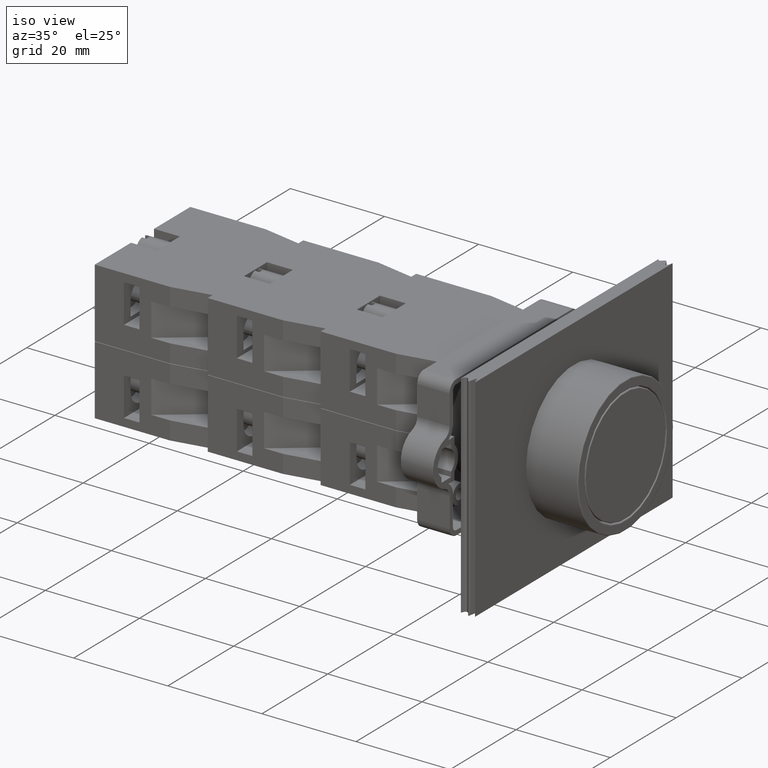
[diagram: clean part render]
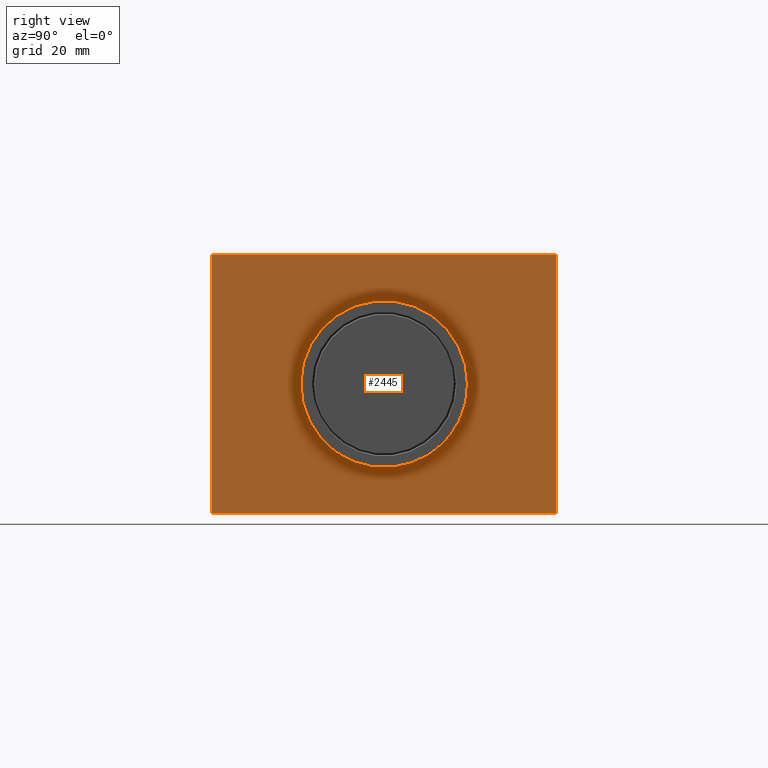
[diagram: tour spotlight — one face highlighted and labeled with its STEP entity id]
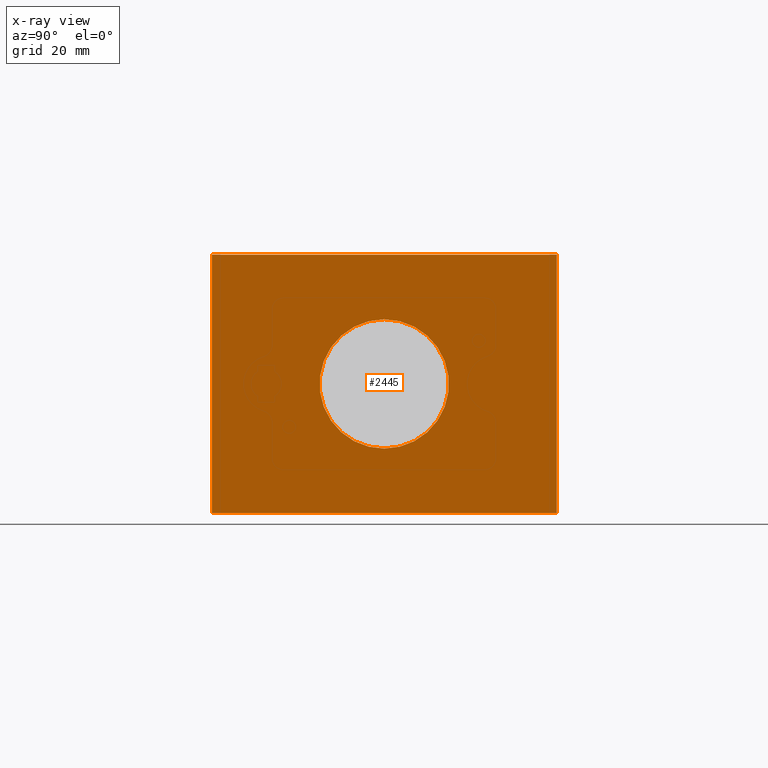
[diagram: x-ray of the same camera — body ghosted, this tour face saturated]
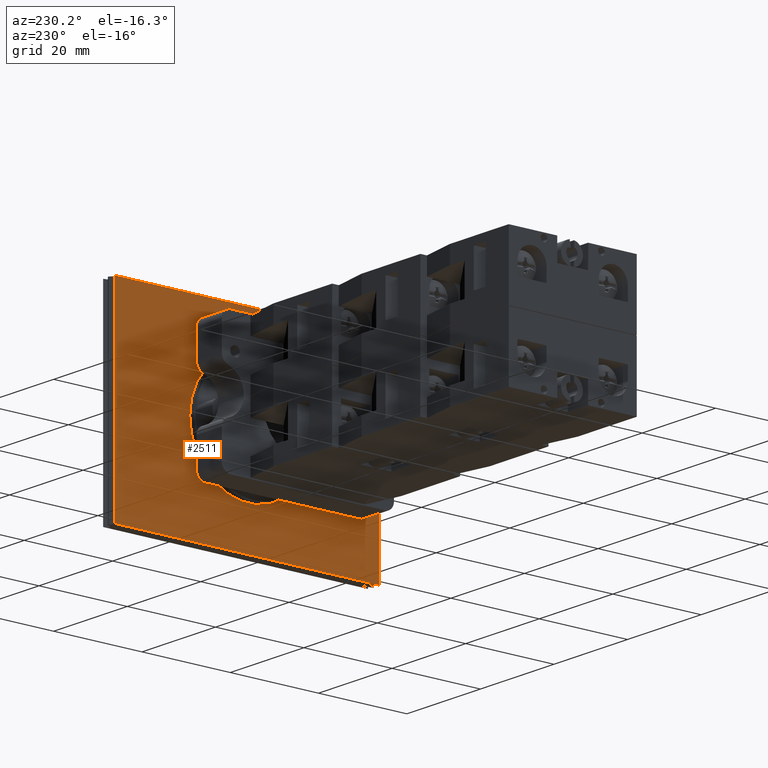
[diagram: tour spotlight — one face highlighted and labeled with its STEP entity id]
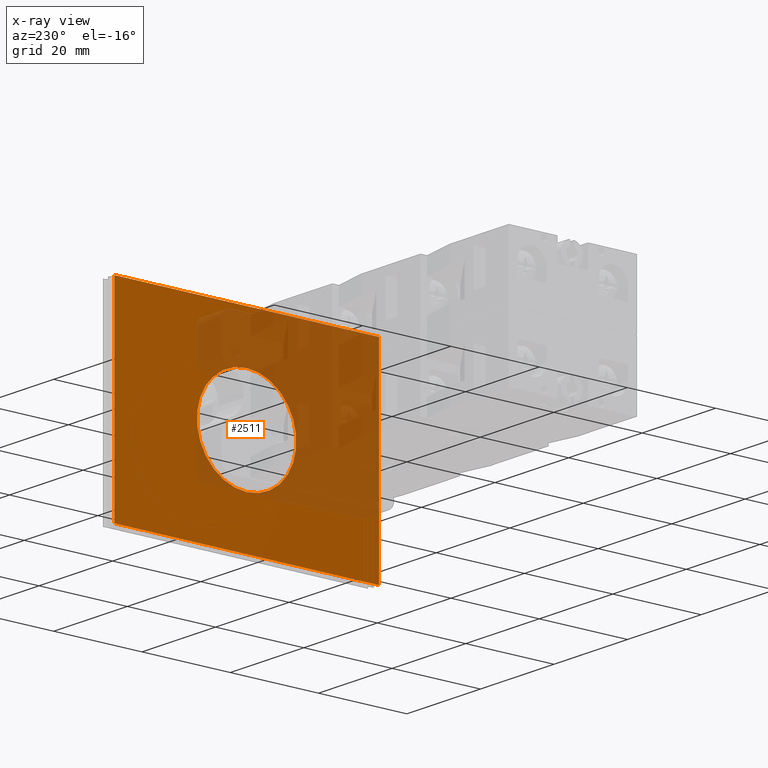
[diagram: x-ray of the same camera — body ghosted, this tour face saturated]
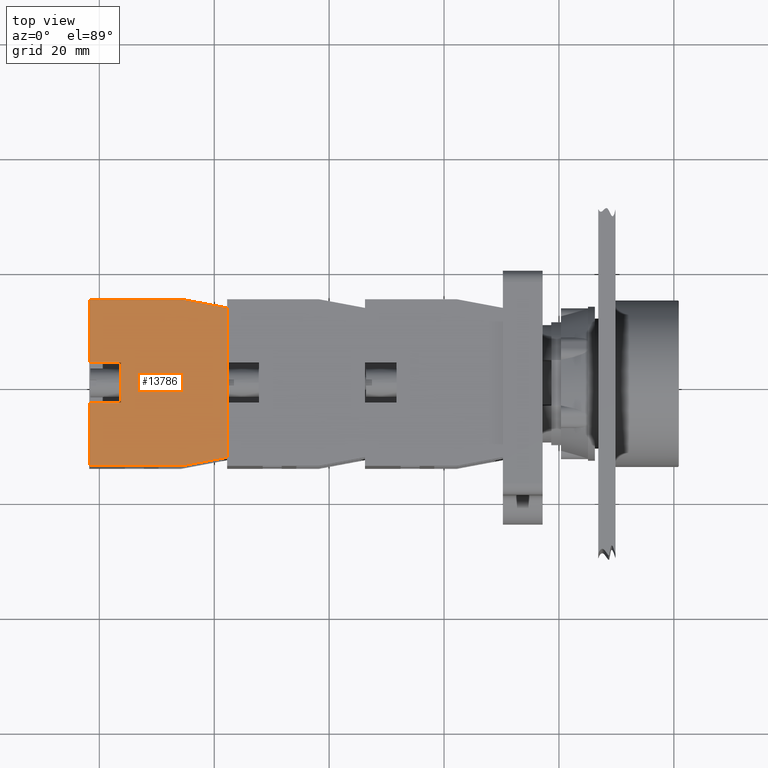
[diagram: tour spotlight — one face highlighted and labeled with its STEP entity id]
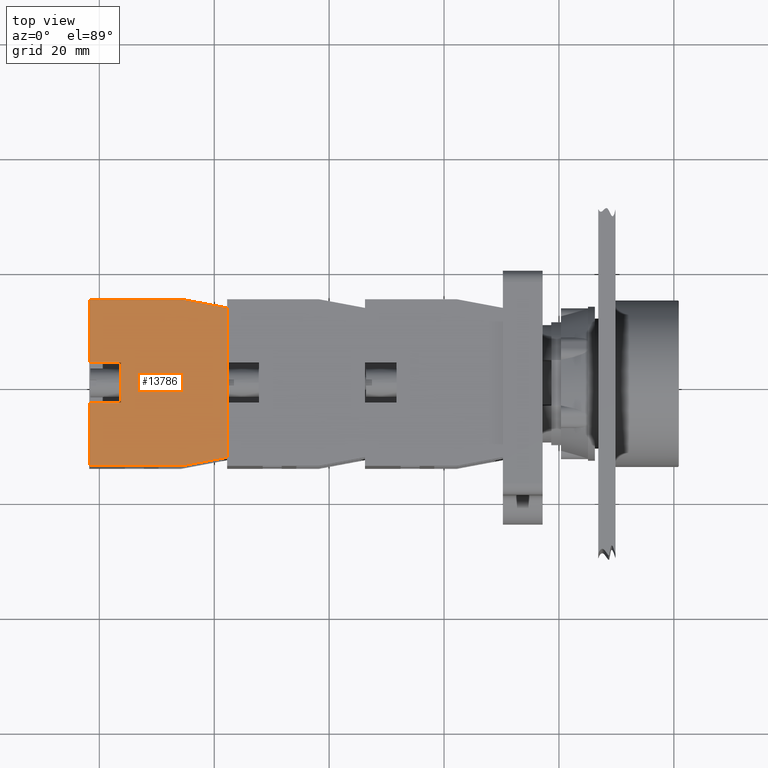
[diagram: tour spotlight — one face highlighted and labeled with its STEP entity id]
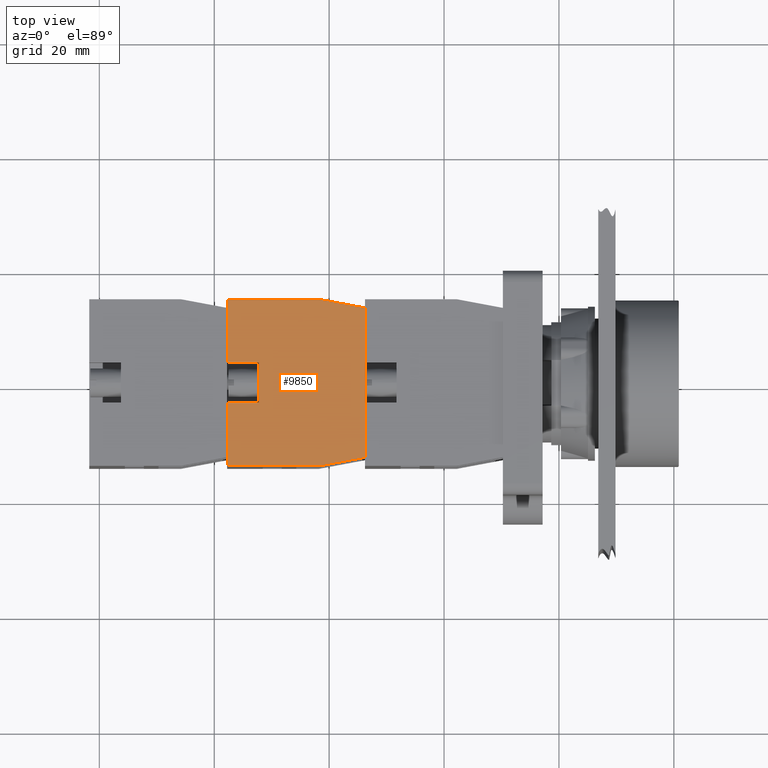
[diagram: tour spotlight — one face highlighted and labeled with its STEP entity id]
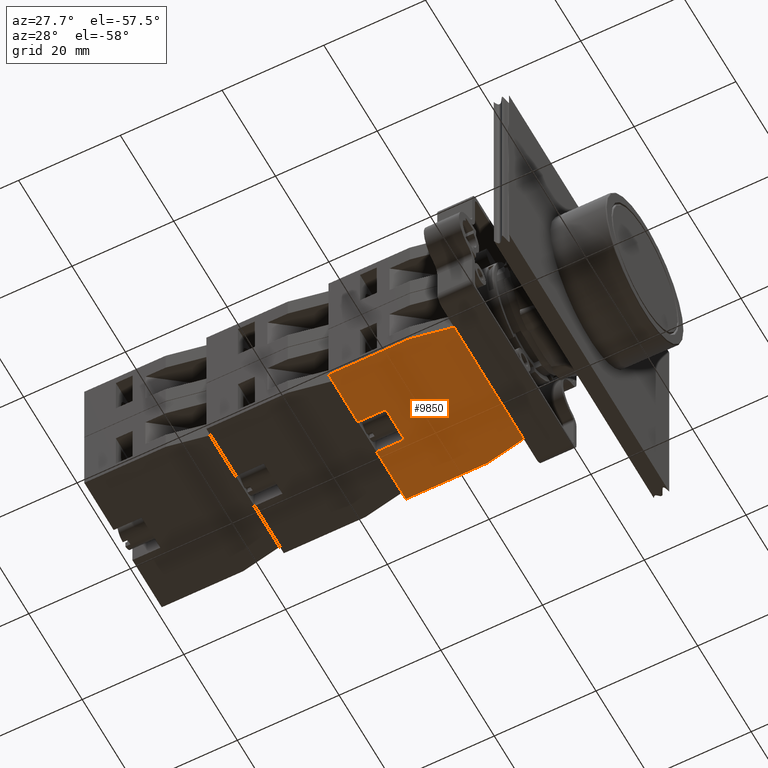
[diagram: tour spotlight — one face highlighted and labeled with its STEP entity id]
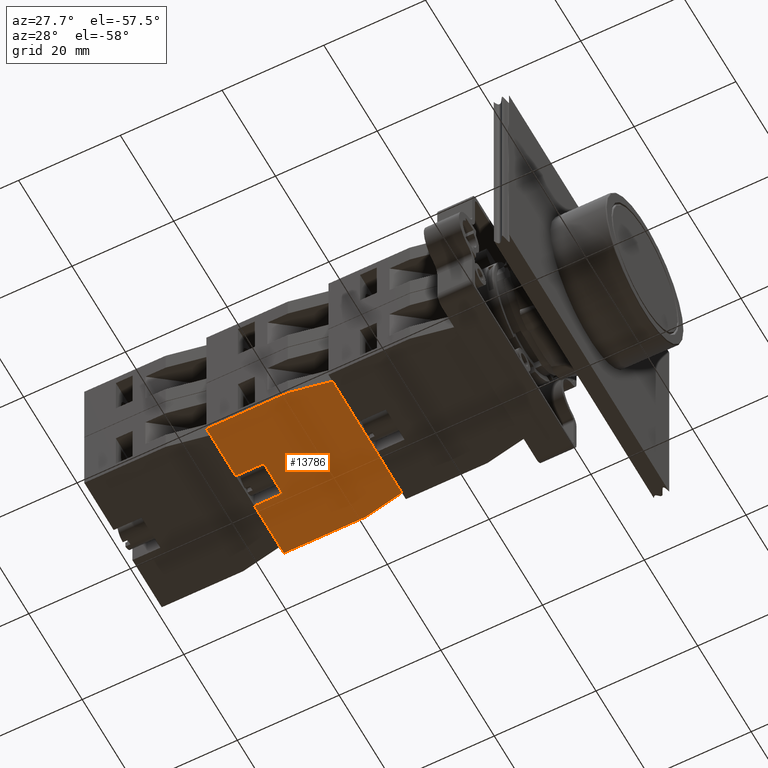
[diagram: tour spotlight — one face highlighted and labeled with its STEP entity id]
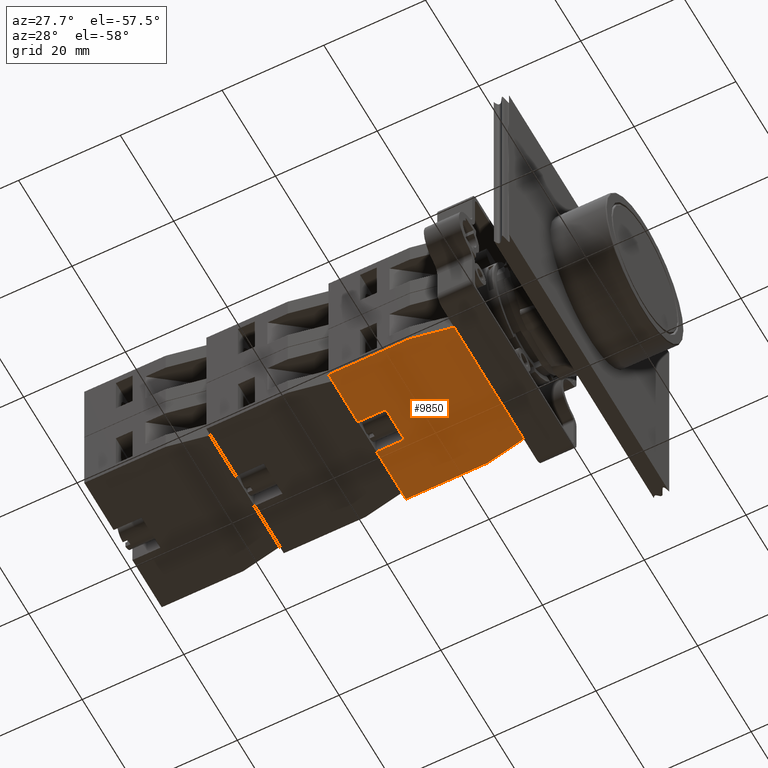
[diagram: tour spotlight — one face highlighted and labeled with its STEP entity id]
A machine part: a face-by-face anatomy tour. The part has 1168 B-rep faces; the first image is the clean iso view, then the 8 largest visible faces are spotlighted one at a time (largest first), each with its STEP entity span.

Face 1 — right view, entity #2445. An x-ray twin of the same camera follows (body ghosted, this face saturated) — the face is partly hidden behind the body. In plain terms, the highlighted planar face has unit normal (1, 0, 0).
Definition (entity closure, byte-faithful):
#2350=CARTESIAN_POINT('',(-12.704183619849175,-32.725398273954283,11.250000000000000));
#2351=VERTEX_POINT('',#2350);
#2352=CARTESIAN_POINT('',(-12.704183619849179,-32.725398273954283,22.500000000000000));
#2353=DIRECTION('',(-1.0,0.0,0.0));
#2354=DIRECTION('',(0.0,0.0,1.0));
#2355=AXIS2_PLACEMENT_3D('',#2352,#2353,#2354);
#2356=CIRCLE('',#2355,11.250000000000000);
#2357=EDGE_CURVE('',#2351,#2351,#2356,.T.);
#2375=CARTESIAN_POINT('',(-12.704183619849179,-2.725398273954287,45.0));
#2376=VERTEX_POINT('',#2375);
#2385=CARTESIAN_POINT('',(-12.704183619849179,-2.725398273954287,0.0));
#2386=VERTEX_POINT('',#2385);
#2387=CARTESIAN_POINT('',(-12.704183619849179,-2.725398273954287,0.0));
#2388=DIRECTION('',(0.0,0.0,1.0));
#2389=VECTOR('',#2388,45.0);
#2390=LINE('',#2387,#2389);
#2391=EDGE_CURVE('',#2386,#2376,#2390,.T.);
#2412=CARTESIAN_POINT('',(-12.704183619849179,-2.725398273954287,0.0));
#2413=DIRECTION('',(1.0,0.0,0.0));
#2414=DIRECTION('',(0.0,0.0,-1.0));
#2415=AXIS2_PLACEMENT_3D('',#2412,#2413,#2414);
#2416=PLANE('',#2415);
#2417=CARTESIAN_POINT('',(-12.704183619849172,-62.725398273954283,45.0));
#2418=VERTEX_POINT('',#2417);
#2419=CARTESIAN_POINT('',(-12.704183619849179,-2.725398273954287,45.0));
#2420=DIRECTION('',(0.0,-1.0,0.0));
#2421=VECTOR('',#2420,60.0);
#2422=LINE('',#2419,#2421);
#2423=EDGE_CURVE('',#2376,#2418,#2422,.T.);
#2424=ORIENTED_EDGE('',*,*,#2423,.T.);
#2425=CARTESIAN_POINT('',(-12.704183619849172,-62.725398273954283,0.0));
#2426=VERTEX_POINT('',#2425);
#2427=CARTESIAN_POINT('',(-12.704183619849172,-62.725398273954283,0.0));
#2428=DIRECTION('',(0.0,0.0,1.0));
#2429=VECTOR('',#2428,45.0);
#2430=LINE('',#2427,#2429);
#2431=EDGE_CURVE('',#2426,#2418,#2430,.T.);
#2432=ORIENTED_EDGE('',*,*,#2431,.F.);
#2433=CARTESIAN_POINT('',(-12.704183619849172,-62.725398273954283,0.0));
#2434=DIRECTION('',(0.0,1.0,0.0));
#2435=VECTOR('',#2434,60.0);
#2436=LINE('',#2433,#2435);
#2437=EDGE_CURVE('',#2426,#2386,#2436,.T.);
#2438=ORIENTED_EDGE('',*,*,#2437,.T.);
#2439=ORIENTED_EDGE('',*,*,#2391,.T.);
#2440=EDGE_LOOP('',(#2424,#2432,#2438,#2439));
#2441=FACE_OUTER_BOUND('',#2440,.T.);
#2442=ORIENTED_EDGE('',*,*,#2357,.T.);
#2443=EDGE_LOOP('',(#2442));
#2444=FACE_BOUND('',#2443,.T.);
#2445=ADVANCED_FACE('',(#2441,#2444),#2416,.T.);

Face 2 — auxiliary view, entity #2511. An x-ray twin of the same camera follows (body ghosted, this face saturated) — the face is partly hidden behind the body. In plain terms, the highlighted planar face has unit normal (-1, 0, 0).
Definition (entity closure, byte-faithful):
#2339=CARTESIAN_POINT('',(-15.704183619849179,-32.725398273954283,11.250000000000000));
#2340=VERTEX_POINT('',#2339);
#2341=CARTESIAN_POINT('',(-15.704183619849179,-32.725398273954283,22.500000000000000));
#2342=DIRECTION('',(1.0,0.0,0.0));
#2343=DIRECTION('',(0.0,0.0,1.0));
#2344=AXIS2_PLACEMENT_3D('',#2341,#2342,#2343);
#2345=CIRCLE('',#2344,11.250000000000000);
#2346=EDGE_CURVE('',#2340,#2340,#2345,.T.);
#2373=CARTESIAN_POINT('',(-15.704183619849179,-2.725398273954287,45.0));
#2374=VERTEX_POINT('',#2373);
#2393=CARTESIAN_POINT('',(-15.704183619849179,-2.725398273954287,0.0));
#2394=VERTEX_POINT('',#2393);
#2403=CARTESIAN_POINT('',(-15.704183619849179,-2.725398273954287,0.0));
#2404=DIRECTION('',(0.0,0.0,1.0));
#2405=VECTOR('',#2404,45.0);
#2406=LINE('',#2403,#2405);
#2407=EDGE_CURVE('',#2394,#2374,#2406,.T.);
#2457=CARTESIAN_POINT('',(-15.704183619849179,-62.725398273954283,45.0));
#2458=VERTEX_POINT('',#2457);
#2467=CARTESIAN_POINT('',(-15.704183619849179,-62.725398273954283,0.0));
#2468=VERTEX_POINT('',#2467);
#2469=CARTESIAN_POINT('',(-15.704183619849179,-62.725398273954283,0.0));
#2470=DIRECTION('',(0.0,0.0,1.0));
#2471=VECTOR('',#2470,45.0);
#2472=LINE('',#2469,#2471);
#2473=EDGE_CURVE('',#2468,#2458,#2472,.T.);
#2487=CARTESIAN_POINT('',(-15.704183619849179,-62.725398273954283,0.0));
#2488=DIRECTION('',(-1.0,0.0,0.0));
#2489=DIRECTION('',(0.0,0.0,1.0));
#2490=AXIS2_PLACEMENT_3D('',#2487,#2488,#2489);
#2491=PLANE('',#2490);
#2492=CARTESIAN_POINT('',(-15.704183619849179,-62.725398273954283,45.0));
#2493=DIRECTION('',(0.0,1.0,0.0));
#2494=VECTOR('',#2493,60.0);
#2495=LINE('',#2492,#2494);
#2496=EDGE_CURVE('',#2458,#2374,#2495,.T.);
#2497=ORIENTED_EDGE('',*,*,#2496,.T.);
#2498=ORIENTED_EDGE('',*,*,#2407,.F.);
#2499=CARTESIAN_POINT('',(-15.704183619849179,-2.725398273954287,0.0));
#2500=DIRECTION('',(0.0,-1.0,0.0));
#2501=VECTOR('',#2500,60.0);
#2502=LINE('',#2499,#2501);
#2503=EDGE_CURVE('',#2394,#2468,#2502,.T.);
#2504=ORIENTED_EDGE('',*,*,#2503,.T.);
#2505=ORIENTED_EDGE('',*,*,#2473,.T.);
#2506=EDGE_LOOP('',(#2497,#2498,#2504,#2505));
#2507=FACE_OUTER_BOUND('',#2506,.T.);
#2508=ORIENTED_EDGE('',*,*,#2346,.T.);
#2509=EDGE_LOOP('',(#2508));
#2510=FACE_BOUND('',#2509,.T.);
#2511=ADVANCED_FACE('',(#2507,#2510),#2491,.T.);

Face 3 — top view, entity #13786. In plain terms, the highlighted planar face has unit normal (-0, -0, 1).
Definition (entity closure, byte-faithful):
#12089=CARTESIAN_POINT('',(-44.936741828918457,7.797073323279626,14.699999999999999));
#12090=VERTEX_POINT('',#12089);
#12097=CARTESIAN_POINT('',(-44.936741828918471,23.797073323279623,14.699999999999999));
#12098=VERTEX_POINT('',#12097);
#12099=CARTESIAN_POINT('',(-44.936741828918457,7.797073323279626,14.699999999999999));
#12100=DIRECTION('',(0.0,1.0,0.0));
#12101=VECTOR('',#12100,15.999999999999996);
#12102=LINE('',#12099,#12101);
#12103=EDGE_CURVE('',#12090,#12098,#12102,.T.);
#12170=CARTESIAN_POINT('',(-43.436741828918457,-0.202926676720380,14.699999999999999));
#12171=VERTEX_POINT('',#12170);
#12178=CARTESIAN_POINT('',(-43.436741828918457,-0.202926676720380,14.699999999999999));
#12179=DIRECTION('',(-0.184288535050185,0.982872186934322,0.0));
#12180=VECTOR('',#12179,8.139410298049860);
#12181=LINE('',#12178,#12180);
#12182=EDGE_CURVE('',#12171,#12090,#12181,.T.);
#12321=CARTESIAN_POINT('',(-17.436741828918457,-0.202926676720377,14.699999999999999));
#12322=VERTEX_POINT('',#12321);
#12329=CARTESIAN_POINT('',(-17.436741828918457,-0.202926676720377,14.699999999999999));
#12330=DIRECTION('',(-1.0,0.0,0.0));
#12331=VECTOR('',#12330,26.0);
#12332=LINE('',#12329,#12331);
#12333=EDGE_CURVE('',#12322,#12171,#12332,.T.);
#12414=CARTESIAN_POINT('',(-15.936741828918466,7.797073323279626,14.699999999999999));
#12415=VERTEX_POINT('',#12414);
#12422=CARTESIAN_POINT('',(-15.936741828918466,7.797073323279626,14.699999999999999));
#12423=DIRECTION('',(-0.184288535050184,-0.982872186934322,0.0));
#12424=VECTOR('',#12423,8.139410298049855);
#12425=LINE('',#12422,#12424);
#12426=EDGE_CURVE('',#12415,#12322,#12425,.T.);
#13521=CARTESIAN_POINT('',(-26.936741828918468,18.297073323279626,14.699999999999999));
#13522=VERTEX_POINT('',#13521);
#13531=CARTESIAN_POINT('',(-26.936741828918468,23.797073323279626,14.699999999999999));
#13532=VERTEX_POINT('',#13531);
#13533=CARTESIAN_POINT('',(-26.936741828918468,23.797073323279626,14.699999999999999));
#13534=DIRECTION('',(0.0,-1.0,0.0));
#13535=VECTOR('',#13534,5.500000000000000);
#13536=LINE('',#13533,#13535);
#13537=EDGE_CURVE('',#13532,#13522,#13536,.T.);
#13592=CARTESIAN_POINT('',(-33.936741828918464,18.297073323279619,14.699999999999999));
#13593=VERTEX_POINT('',#13592);
#13601=CARTESIAN_POINT('',(-33.936741828918464,23.797073323279623,14.699999999999999));
#13602=VERTEX_POINT('',#13601);
#13609=CARTESIAN_POINT('',(-33.936741828918464,18.297073323279619,14.699999999999999));
#13610=DIRECTION('',(0.0,1.0,0.0));
#13611=VECTOR('',#13610,5.500000000000004);
#13612=LINE('',#13609,#13611);
#13613=EDGE_CURVE('',#13593,#13602,#13612,.T.);
#13626=CARTESIAN_POINT('',(-26.936741828918468,18.297073323279626,14.699999999999999));
#13627=DIRECTION('',(-1.0,0.0,0.0));
#13628=VECTOR('',#13627,6.999999999999996);
#13629=LINE('',#13626,#13628);
#13630=EDGE_CURVE('',#13522,#13593,#13629,.T.);
#13646=CARTESIAN_POINT('',(-15.936741828918466,23.797073323279626,14.699999999999999));
#13647=VERTEX_POINT('',#13646);
#13648=CARTESIAN_POINT('',(-26.936741828918468,23.797073323279626,14.699999999999999));
#13649=DIRECTION('',(1.0,0.0,0.0));
#13650=VECTOR('',#13649,11.000000000000002);
#13651=LINE('',#13648,#13650);
#13652=EDGE_CURVE('',#13532,#13647,#13651,.T.);
#13669=CARTESIAN_POINT('',(-44.936741828918471,23.797073323279623,14.699999999999999));
#13670=DIRECTION('',(1.0,0.0,0.0));
#13671=VECTOR('',#13670,11.000000000000007);
#13672=LINE('',#13669,#13671);
#13673=EDGE_CURVE('',#12098,#13602,#13672,.T.);
#13717=CARTESIAN_POINT('',(-15.936741828918466,23.797073323279626,14.699999999999999));
#13718=DIRECTION('',(0.0,-1.0,0.0));
#13719=VECTOR('',#13718,16.0);
#13720=LINE('',#13717,#13719);
#13721=EDGE_CURVE('',#13647,#12415,#13720,.T.);
#13769=CARTESIAN_POINT('',(-30.436741828918457,12.124046801833057,14.699999999999999));
#13770=DIRECTION('',(0.0,0.0,1.0));
#13771=DIRECTION('',(1.0,0.0,0.0));
#13772=AXIS2_PLACEMENT_3D('',#13769,#13770,#13771);
#13773=PLANE('',#13772);
#13774=ORIENTED_EDGE('',*,*,#13613,.T.);
#13775=ORIENTED_EDGE('',*,*,#13673,.F.);
#13776=ORIENTED_EDGE('',*,*,#12103,.F.);
#13777=ORIENTED_EDGE('',*,*,#12182,.F.);
#13778=ORIENTED_EDGE('',*,*,#12333,.F.);
#13779=ORIENTED_EDGE('',*,*,#12426,.F.);
#13780=ORIENTED_EDGE('',*,*,#13721,.F.);
#13781=ORIENTED_EDGE('',*,*,#13652,.F.);
#13782=ORIENTED_EDGE('',*,*,#13537,.T.);
#13783=ORIENTED_EDGE('',*,*,#13630,.T.);
#13784=EDGE_LOOP('',(#13774,#13775,#13776,#13777,#13778,#13779,#13780,#13781,#13782,#13783));
#13785=FACE_OUTER_BOUND('',#13784,.T.);
#13786=ADVANCED_FACE('',(#13785),#13773,.T.);

Face 4 — top view, entity #13786. In plain terms, the highlighted planar face has unit normal (-0, -0, 1).
Definition (entity closure, byte-faithful):
#12089=CARTESIAN_POINT('',(-44.936741828918457,7.797073323279626,14.699999999999999));
#12090=VERTEX_POINT('',#12089);
#12097=CARTESIAN_POINT('',(-44.936741828918471,23.797073323279623,14.699999999999999));
#12098=VERTEX_POINT('',#12097);
#12099=CARTESIAN_POINT('',(-44.936741828918457,7.797073323279626,14.699999999999999));
#12100=DIRECTION('',(0.0,1.0,0.0));
#12101=VECTOR('',#12100,15.999999999999996);
#12102=LINE('',#12099,#12101);
#12103=EDGE_CURVE('',#12090,#12098,#12102,.T.);
#12170=CARTESIAN_POINT('',(-43.436741828918457,-0.202926676720380,14.699999999999999));
#12171=VERTEX_POINT('',#12170);
#12178=CARTESIAN_POINT('',(-43.436741828918457,-0.202926676720380,14.699999999999999));
#12179=DIRECTION('',(-0.184288535050185,0.982872186934322,0.0));
#12180=VECTOR('',#12179,8.139410298049860);
#12181=LINE('',#12178,#12180);
#12182=EDGE_CURVE('',#12171,#12090,#12181,.T.);
#12321=CARTESIAN_POINT('',(-17.436741828918457,-0.202926676720377,14.699999999999999));
#12322=VERTEX_POINT('',#12321);
#12329=CARTESIAN_POINT('',(-17.436741828918457,-0.202926676720377,14.699999999999999));
#12330=DIRECTION('',(-1.0,0.0,0.0));
#12331=VECTOR('',#12330,26.0);
#12332=LINE('',#12329,#12331);
#12333=EDGE_CURVE('',#12322,#12171,#12332,.T.);
#12414=CARTESIAN_POINT('',(-15.936741828918466,7.797073323279626,14.699999999999999));
#12415=VERTEX_POINT('',#12414);
#12422=CARTESIAN_POINT('',(-15.936741828918466,7.797073323279626,14.699999999999999));
#12423=DIRECTION('',(-0.184288535050184,-0.982872186934322,0.0));
#12424=VECTOR('',#12423,8.139410298049855);
#12425=LINE('',#12422,#12424);
#12426=EDGE_CURVE('',#12415,#12322,#12425,.T.);
#13521=CARTESIAN_POINT('',(-26.936741828918468,18.297073323279626,14.699999999999999));
#13522=VERTEX_POINT('',#13521);
#13531=CARTESIAN_POINT('',(-26.936741828918468,23.797073323279626,14.699999999999999));
#13532=VERTEX_POINT('',#13531);
#13533=CARTESIAN_POINT('',(-26.936741828918468,23.797073323279626,14.699999999999999));
#13534=DIRECTION('',(0.0,-1.0,0.0));
#13535=VECTOR('',#13534,5.500000000000000);
#13536=LINE('',#13533,#13535);
#13537=EDGE_CURVE('',#13532,#13522,#13536,.T.);
#13592=CARTESIAN_POINT('',(-33.936741828918464,18.297073323279619,14.699999999999999));
#13593=VERTEX_POINT('',#13592);
#13601=CARTESIAN_POINT('',(-33.936741828918464,23.797073323279623,14.699999999999999));
#13602=VERTEX_POINT('',#13601);
#13609=CARTESIAN_POINT('',(-33.936741828918464,18.297073323279619,14.699999999999999));
#13610=DIRECTION('',(0.0,1.0,0.0));
#13611=VECTOR('',#13610,5.500000000000004);
#13612=LINE('',#13609,#13611);
#13613=EDGE_CURVE('',#13593,#13602,#13612,.T.);
#13626=CARTESIAN_POINT('',(-26.936741828918468,18.297073323279626,14.699999999999999));
#13627=DIRECTION('',(-1.0,0.0,0.0));
#13628=VECTOR('',#13627,6.999999999999996);
#13629=LINE('',#13626,#13628);
#13630=EDGE_CURVE('',#13522,#13593,#13629,.T.);
#13646=CARTESIAN_POINT('',(-15.936741828918466,23.797073323279626,14.699999999999999));
#13647=VERTEX_POINT('',#13646);
#13648=CARTESIAN_POINT('',(-26.936741828918468,23.797073323279626,14.699999999999999));
#13649=DIRECTION('',(1.0,0.0,0.0));
#13650=VECTOR('',#13649,11.000000000000002);
#13651=LINE('',#13648,#13650);
#13652=EDGE_CURVE('',#13532,#13647,#13651,.T.);
#13669=CARTESIAN_POINT('',(-44.936741828918471,23.797073323279623,14.699999999999999));
#13670=DIRECTION('',(1.0,0.0,0.0));
#13671=VECTOR('',#13670,11.000000000000007);
#13672=LINE('',#13669,#13671);
#13673=EDGE_CURVE('',#12098,#13602,#13672,.T.);
#13717=CARTESIAN_POINT('',(-15.936741828918466,23.797073323279626,14.699999999999999));
#13718=DIRECTION('',(0.0,-1.0,0.0));
#13719=VECTOR('',#13718,16.0);
#13720=LINE('',#13717,#13719);
#13721=EDGE_CURVE('',#13647,#12415,#13720,.T.);
#13769=CARTESIAN_POINT('',(-30.436741828918457,12.124046801833057,14.699999999999999));
#13770=DIRECTION('',(0.0,0.0,1.0));
#13771=DIRECTION('',(1.0,0.0,0.0));
#13772=AXIS2_PLACEMENT_3D('',#13769,#13770,#13771);
#13773=PLANE('',#13772);
#13774=ORIENTED_EDGE('',*,*,#13613,.T.);
#13775=ORIENTED_EDGE('',*,*,#13673,.F.);
#13776=ORIENTED_EDGE('',*,*,#12103,.F.);
#13777=ORIENTED_EDGE('',*,*,#12182,.F.);
#13778=ORIENTED_EDGE('',*,*,#12333,.F.);
#13779=ORIENTED_EDGE('',*,*,#12426,.F.);
#13780=ORIENTED_EDGE('',*,*,#13721,.F.);
#13781=ORIENTED_EDGE('',*,*,#13652,.F.);
#13782=ORIENTED_EDGE('',*,*,#13537,.T.);
#13783=ORIENTED_EDGE('',*,*,#13630,.T.);
#13784=EDGE_LOOP('',(#13774,#13775,#13776,#13777,#13778,#13779,#13780,#13781,#13782,#13783));
#13785=FACE_OUTER_BOUND('',#13784,.T.);
#13786=ADVANCED_FACE('',(#13785),#13773,.T.);

Face 5 — top view, entity #9850. In plain terms, the highlighted planar face has unit normal (-0, -0, 1).
Definition (entity closure, byte-faithful):
#8153=CARTESIAN_POINT('',(-44.936741828918457,7.797073323279626,14.699999999999999));
#8154=VERTEX_POINT('',#8153);
#8161=CARTESIAN_POINT('',(-44.936741828918471,23.797073323279623,14.699999999999999));
#8162=VERTEX_POINT('',#8161);
#8163=CARTESIAN_POINT('',(-44.936741828918457,7.797073323279626,14.699999999999999));
#8164=DIRECTION('',(0.0,1.0,0.0));
#8165=VECTOR('',#8164,15.999999999999996);
#8166=LINE('',#8163,#8165);
#8167=EDGE_CURVE('',#8154,#8162,#8166,.T.);
#8234=CARTESIAN_POINT('',(-43.436741828918457,-0.202926676720380,14.699999999999999));
#8235=VERTEX_POINT('',#8234);
#8242=CARTESIAN_POINT('',(-43.436741828918457,-0.202926676720380,14.699999999999999));
#8243=DIRECTION('',(-0.184288535050185,0.982872186934322,0.0));
#8244=VECTOR('',#8243,8.139410298049860);
#8245=LINE('',#8242,#8244);
#8246=EDGE_CURVE('',#8235,#8154,#8245,.T.);
#8385=CARTESIAN_POINT('',(-17.436741828918457,-0.202926676720377,14.699999999999999));
#8386=VERTEX_POINT('',#8385);
#8393=CARTESIAN_POINT('',(-17.436741828918457,-0.202926676720377,14.699999999999999));
#8394=DIRECTION('',(-1.0,0.0,0.0));
#8395=VECTOR('',#8394,26.0);
#8396=LINE('',#8393,#8395);
#8397=EDGE_CURVE('',#8386,#8235,#8396,.T.);
#8478=CARTESIAN_POINT('',(-15.936741828918466,7.797073323279626,14.699999999999999));
#8479=VERTEX_POINT('',#8478);
#8486=CARTESIAN_POINT('',(-15.936741828918466,7.797073323279626,14.699999999999999));
#8487=DIRECTION('',(-0.184288535050184,-0.982872186934322,0.0));
#8488=VECTOR('',#8487,8.139410298049855);
#8489=LINE('',#8486,#8488);
#8490=EDGE_CURVE('',#8479,#8386,#8489,.T.);
#9585=CARTESIAN_POINT('',(-26.936741828918468,18.297073323279626,14.699999999999999));
#9586=VERTEX_POINT('',#9585);
#9595=CARTESIAN_POINT('',(-26.936741828918468,23.797073323279626,14.699999999999999));
#9596=VERTEX_POINT('',#9595);
#9597=CARTESIAN_POINT('',(-26.936741828918468,23.797073323279626,14.699999999999999));
#9598=DIRECTION('',(0.0,-1.0,0.0));
#9599=VECTOR('',#9598,5.500000000000000);
#9600=LINE('',#9597,#9599);
#9601=EDGE_CURVE('',#9596,#9586,#9600,.T.);
#9656=CARTESIAN_POINT('',(-33.936741828918464,18.297073323279619,14.699999999999999));
#9657=VERTEX_POINT('',#9656);
#9665=CARTESIAN_POINT('',(-33.936741828918464,23.797073323279623,14.699999999999999));
#9666=VERTEX_POINT('',#9665);
#9673=CARTESIAN_POINT('',(-33.936741828918464,18.297073323279619,14.699999999999999));
#9674=DIRECTION('',(0.0,1.0,0.0));
#9675=VECTOR('',#9674,5.500000000000004);
#9676=LINE('',#9673,#9675);
#9677=EDGE_CURVE('',#9657,#9666,#9676,.T.);
#9690=CARTESIAN_POINT('',(-26.936741828918468,18.297073323279626,14.699999999999999));
#9691=DIRECTION('',(-1.0,0.0,0.0));
#9692=VECTOR('',#9691,6.999999999999996);
#9693=LINE('',#9690,#9692);
#9694=EDGE_CURVE('',#9586,#9657,#9693,.T.);
#9710=CARTESIAN_POINT('',(-15.936741828918466,23.797073323279626,14.699999999999999));
#9711=VERTEX_POINT('',#9710);
#9712=CARTESIAN_POINT('',(-26.936741828918468,23.797073323279626,14.699999999999999));
#9713=DIRECTION('',(1.0,0.0,0.0));
#9714=VECTOR('',#9713,11.000000000000002);
#9715=LINE('',#9712,#9714);
#9716=EDGE_CURVE('',#9596,#9711,#9715,.T.);
#9733=CARTESIAN_POINT('',(-44.936741828918471,23.797073323279623,14.699999999999999));
#9734=DIRECTION('',(1.0,0.0,0.0));
#9735=VECTOR('',#9734,11.000000000000007);
#9736=LINE('',#9733,#9735);
#9737=EDGE_CURVE('',#8162,#9666,#9736,.T.);
#9781=CARTESIAN_POINT('',(-15.936741828918466,23.797073323279626,14.699999999999999));
#9782=DIRECTION('',(0.0,-1.0,0.0));
#9783=VECTOR('',#9782,16.0);
#9784=LINE('',#9781,#9783);
#9785=EDGE_CURVE('',#9711,#8479,#9784,.T.);
#9833=CARTESIAN_POINT('',(-30.436741828918457,12.124046801833057,14.699999999999999));
#9834=DIRECTION('',(0.0,0.0,1.0));
#9835=DIRECTION('',(1.0,0.0,0.0));
#9836=AXIS2_PLACEMENT_3D('',#9833,#9834,#9835);
#9837=PLANE('',#9836);
#9838=ORIENTED_EDGE('',*,*,#9677,.T.);
#9839=ORIENTED_EDGE('',*,*,#9737,.F.);
#9840=ORIENTED_EDGE('',*,*,#8167,.F.);
#9841=ORIENTED_EDGE('',*,*,#8246,.F.);
#9842=ORIENTED_EDGE('',*,*,#8397,.F.);
#9843=ORIENTED_EDGE('',*,*,#8490,.F.);
#9844=ORIENTED_EDGE('',*,*,#9785,.F.);
#9845=ORIENTED_EDGE('',*,*,#9716,.F.);
#9846=ORIENTED_EDGE('',*,*,#9601,.T.);
#9847=ORIENTED_EDGE('',*,*,#9694,.T.);
#9848=EDGE_LOOP('',(#9838,#9839,#9840,#9841,#9842,#9843,#9844,#9845,#9846,#9847));
#9849=FACE_OUTER_BOUND('',#9848,.T.);
#9850=ADVANCED_FACE('',(#9849),#9837,.T.);

Face 6 — auxiliary view, entity #9850. In plain terms, the highlighted planar face has unit normal (-0, 0, -1).
Definition (entity closure, byte-faithful):
#8153=CARTESIAN_POINT('',(-44.936741828918457,7.797073323279626,14.699999999999999));
#8154=VERTEX_POINT('',#8153);
#8161=CARTESIAN_POINT('',(-44.936741828918471,23.797073323279623,14.699999999999999));
#8162=VERTEX_POINT('',#8161);
#8163=CARTESIAN_POINT('',(-44.936741828918457,7.797073323279626,14.699999999999999));
#8164=DIRECTION('',(0.0,1.0,0.0));
#8165=VECTOR('',#8164,15.999999999999996);
#8166=LINE('',#8163,#8165);
#8167=EDGE_CURVE('',#8154,#8162,#8166,.T.);
#8234=CARTESIAN_POINT('',(-43.436741828918457,-0.202926676720380,14.699999999999999));
#8235=VERTEX_POINT('',#8234);
#8242=CARTESIAN_POINT('',(-43.436741828918457,-0.202926676720380,14.699999999999999));
#8243=DIRECTION('',(-0.184288535050185,0.982872186934322,0.0));
#8244=VECTOR('',#8243,8.139410298049860);
#8245=LINE('',#8242,#8244);
#8246=EDGE_CURVE('',#8235,#8154,#8245,.T.);
#8385=CARTESIAN_POINT('',(-17.436741828918457,-0.202926676720377,14.699999999999999));
#8386=VERTEX_POINT('',#8385);
#8393=CARTESIAN_POINT('',(-17.436741828918457,-0.202926676720377,14.699999999999999));
#8394=DIRECTION('',(-1.0,0.0,0.0));
#8395=VECTOR('',#8394,26.0);
#8396=LINE('',#8393,#8395);
#8397=EDGE_CURVE('',#8386,#8235,#8396,.T.);
#8478=CARTESIAN_POINT('',(-15.936741828918466,7.797073323279626,14.699999999999999));
#8479=VERTEX_POINT('',#8478);
#8486=CARTESIAN_POINT('',(-15.936741828918466,7.797073323279626,14.699999999999999));
#8487=DIRECTION('',(-0.184288535050184,-0.982872186934322,0.0));
#8488=VECTOR('',#8487,8.139410298049855);
#8489=LINE('',#8486,#8488);
#8490=EDGE_CURVE('',#8479,#8386,#8489,.T.);
#9585=CARTESIAN_POINT('',(-26.936741828918468,18.297073323279626,14.699999999999999));
#9586=VERTEX_POINT('',#9585);
#9595=CARTESIAN_POINT('',(-26.936741828918468,23.797073323279626,14.699999999999999));
#9596=VERTEX_POINT('',#9595);
#9597=CARTESIAN_POINT('',(-26.936741828918468,23.797073323279626,14.699999999999999));
#9598=DIRECTION('',(0.0,-1.0,0.0));
#9599=VECTOR('',#9598,5.500000000000000);
#9600=LINE('',#9597,#9599);
#9601=EDGE_CURVE('',#9596,#9586,#9600,.T.);
#9656=CARTESIAN_POINT('',(-33.936741828918464,18.297073323279619,14.699999999999999));
#9657=VERTEX_POINT('',#9656);
#9665=CARTESIAN_POINT('',(-33.936741828918464,23.797073323279623,14.699999999999999));
#9666=VERTEX_POINT('',#9665);
#9673=CARTESIAN_POINT('',(-33.936741828918464,18.297073323279619,14.699999999999999));
#9674=DIRECTION('',(0.0,1.0,0.0));
#9675=VECTOR('',#9674,5.500000000000004);
#9676=LINE('',#9673,#9675);
#9677=EDGE_CURVE('',#9657,#9666,#9676,.T.);
#9690=CARTESIAN_POINT('',(-26.936741828918468,18.297073323279626,14.699999999999999));
#9691=DIRECTION('',(-1.0,0.0,0.0));
#9692=VECTOR('',#9691,6.999999999999996);
#9693=LINE('',#9690,#9692);
#9694=EDGE_CURVE('',#9586,#9657,#9693,.T.);
#9710=CARTESIAN_POINT('',(-15.936741828918466,23.797073323279626,14.699999999999999));
#9711=VERTEX_POINT('',#9710);
#9712=CARTESIAN_POINT('',(-26.936741828918468,23.797073323279626,14.699999999999999));
#9713=DIRECTION('',(1.0,0.0,0.0));
#9714=VECTOR('',#9713,11.000000000000002);
#9715=LINE('',#9712,#9714);
#9716=EDGE_CURVE('',#9596,#9711,#9715,.T.);
#9733=CARTESIAN_POINT('',(-44.936741828918471,23.797073323279623,14.699999999999999));
#9734=DIRECTION('',(1.0,0.0,0.0));
#9735=VECTOR('',#9734,11.000000000000007);
#9736=LINE('',#9733,#9735);
#9737=EDGE_CURVE('',#8162,#9666,#9736,.T.);
#9781=CARTESIAN_POINT('',(-15.936741828918466,23.797073323279626,14.699999999999999));
#9782=DIRECTION('',(0.0,-1.0,0.0));
#9783=VECTOR('',#9782,16.0);
#9784=LINE('',#9781,#9783);
#9785=EDGE_CURVE('',#9711,#8479,#9784,.T.);
#9833=CARTESIAN_POINT('',(-30.436741828918457,12.124046801833057,14.699999999999999));
#9834=DIRECTION('',(0.0,0.0,1.0));
#9835=DIRECTION('',(1.0,0.0,0.0));
#9836=AXIS2_PLACEMENT_3D('',#9833,#9834,#9835);
#9837=PLANE('',#9836);
#9838=ORIENTED_EDGE('',*,*,#9677,.T.);
#9839=ORIENTED_EDGE('',*,*,#9737,.F.);
#9840=ORIENTED_EDGE('',*,*,#8167,.F.);
#9841=ORIENTED_EDGE('',*,*,#8246,.F.);
#9842=ORIENTED_EDGE('',*,*,#8397,.F.);
#9843=ORIENTED_EDGE('',*,*,#8490,.F.);
#9844=ORIENTED_EDGE('',*,*,#9785,.F.);
#9845=ORIENTED_EDGE('',*,*,#9716,.F.);
#9846=ORIENTED_EDGE('',*,*,#9601,.T.);
#9847=ORIENTED_EDGE('',*,*,#9694,.T.);
#9848=EDGE_LOOP('',(#9838,#9839,#9840,#9841,#9842,#9843,#9844,#9845,#9846,#9847));
#9849=FACE_OUTER_BOUND('',#9848,.T.);
#9850=ADVANCED_FACE('',(#9849),#9837,.T.);

Face 7 — auxiliary view, entity #13786. In plain terms, the highlighted planar face has unit normal (-0, -0, -1).
Definition (entity closure, byte-faithful):
#12089=CARTESIAN_POINT('',(-44.936741828918457,7.797073323279626,14.699999999999999));
#12090=VERTEX_POINT('',#12089);
#12097=CARTESIAN_POINT('',(-44.936741828918471,23.797073323279623,14.699999999999999));
#12098=VERTEX_POINT('',#12097);
#12099=CARTESIAN_POINT('',(-44.936741828918457,7.797073323279626,14.699999999999999));
#12100=DIRECTION('',(0.0,1.0,0.0));
#12101=VECTOR('',#12100,15.999999999999996);
#12102=LINE('',#12099,#12101);
#12103=EDGE_CURVE('',#12090,#12098,#12102,.T.);
#12170=CARTESIAN_POINT('',(-43.436741828918457,-0.202926676720380,14.699999999999999));
#12171=VERTEX_POINT('',#12170);
#12178=CARTESIAN_POINT('',(-43.436741828918457,-0.202926676720380,14.699999999999999));
#12179=DIRECTION('',(-0.184288535050185,0.982872186934322,0.0));
#12180=VECTOR('',#12179,8.139410298049860);
#12181=LINE('',#12178,#12180);
#12182=EDGE_CURVE('',#12171,#12090,#12181,.T.);
#12321=CARTESIAN_POINT('',(-17.436741828918457,-0.202926676720377,14.699999999999999));
#12322=VERTEX_POINT('',#12321);
#12329=CARTESIAN_POINT('',(-17.436741828918457,-0.202926676720377,14.699999999999999));
#12330=DIRECTION('',(-1.0,0.0,0.0));
#12331=VECTOR('',#12330,26.0);
#12332=LINE('',#12329,#12331);
#12333=EDGE_CURVE('',#12322,#12171,#12332,.T.);
#12414=CARTESIAN_POINT('',(-15.936741828918466,7.797073323279626,14.699999999999999));
#12415=VERTEX_POINT('',#12414);
#12422=CARTESIAN_POINT('',(-15.936741828918466,7.797073323279626,14.699999999999999));
#12423=DIRECTION('',(-0.184288535050184,-0.982872186934322,0.0));
#12424=VECTOR('',#12423,8.139410298049855);
#12425=LINE('',#12422,#12424);
#12426=EDGE_CURVE('',#12415,#12322,#12425,.T.);
#13521=CARTESIAN_POINT('',(-26.936741828918468,18.297073323279626,14.699999999999999));
#13522=VERTEX_POINT('',#13521);
#13531=CARTESIAN_POINT('',(-26.936741828918468,23.797073323279626,14.699999999999999));
#13532=VERTEX_POINT('',#13531);
#13533=CARTESIAN_POINT('',(-26.936741828918468,23.797073323279626,14.699999999999999));
#13534=DIRECTION('',(0.0,-1.0,0.0));
#13535=VECTOR('',#13534,5.500000000000000);
#13536=LINE('',#13533,#13535);
#13537=EDGE_CURVE('',#13532,#13522,#13536,.T.);
#13592=CARTESIAN_POINT('',(-33.936741828918464,18.297073323279619,14.699999999999999));
#13593=VERTEX_POINT('',#13592);
#13601=CARTESIAN_POINT('',(-33.936741828918464,23.797073323279623,14.699999999999999));
#13602=VERTEX_POINT('',#13601);
#13609=CARTESIAN_POINT('',(-33.936741828918464,18.297073323279619,14.699999999999999));
#13610=DIRECTION('',(0.0,1.0,0.0));
#13611=VECTOR('',#13610,5.500000000000004);
#13612=LINE('',#13609,#13611);
#13613=EDGE_CURVE('',#13593,#13602,#13612,.T.);
#13626=CARTESIAN_POINT('',(-26.936741828918468,18.297073323279626,14.699999999999999));
#13627=DIRECTION('',(-1.0,0.0,0.0));
#13628=VECTOR('',#13627,6.999999999999996);
#13629=LINE('',#13626,#13628);
#13630=EDGE_CURVE('',#13522,#13593,#13629,.T.);
#13646=CARTESIAN_POINT('',(-15.936741828918466,23.797073323279626,14.699999999999999));
#13647=VERTEX_POINT('',#13646);
#13648=CARTESIAN_POINT('',(-26.936741828918468,23.797073323279626,14.699999999999999));
#13649=DIRECTION('',(1.0,0.0,0.0));
#13650=VECTOR('',#13649,11.000000000000002);
#13651=LINE('',#13648,#13650);
#13652=EDGE_CURVE('',#13532,#13647,#13651,.T.);
#13669=CARTESIAN_POINT('',(-44.936741828918471,23.797073323279623,14.699999999999999));
#13670=DIRECTION('',(1.0,0.0,0.0));
#13671=VECTOR('',#13670,11.000000000000007);
#13672=LINE('',#13669,#13671);
#13673=EDGE_CURVE('',#12098,#13602,#13672,.T.);
#13717=CARTESIAN_POINT('',(-15.936741828918466,23.797073323279626,14.699999999999999));
#13718=DIRECTION('',(0.0,-1.0,0.0));
#13719=VECTOR('',#13718,16.0);
#13720=LINE('',#13717,#13719);
#13721=EDGE_CURVE('',#13647,#12415,#13720,.T.);
#13769=CARTESIAN_POINT('',(-30.436741828918457,12.124046801833057,14.699999999999999));
#13770=DIRECTION('',(0.0,0.0,1.0));
#13771=DIRECTION('',(1.0,0.0,0.0));
#13772=AXIS2_PLACEMENT_3D('',#13769,#13770,#13771);
#13773=PLANE('',#13772);
#13774=ORIENTED_EDGE('',*,*,#13613,.T.);
#13775=ORIENTED_EDGE('',*,*,#13673,.F.);
#13776=ORIENTED_EDGE('',*,*,#12103,.F.);
#13777=ORIENTED_EDGE('',*,*,#12182,.F.);
#13778=ORIENTED_EDGE('',*,*,#12333,.F.);
#13779=ORIENTED_EDGE('',*,*,#12426,.F.);
#13780=ORIENTED_EDGE('',*,*,#13721,.F.);
#13781=ORIENTED_EDGE('',*,*,#13652,.F.);
#13782=ORIENTED_EDGE('',*,*,#13537,.T.);
#13783=ORIENTED_EDGE('',*,*,#13630,.T.);
#13784=EDGE_LOOP('',(#13774,#13775,#13776,#13777,#13778,#13779,#13780,#13781,#13782,#13783));
#13785=FACE_OUTER_BOUND('',#13784,.T.);
#13786=ADVANCED_FACE('',(#13785),#13773,.T.);

Face 8 — auxiliary view, entity #9850. In plain terms, the highlighted planar face has unit normal (0, 0, -1).
Definition (entity closure, byte-faithful):
#8153=CARTESIAN_POINT('',(-44.936741828918457,7.797073323279626,14.699999999999999));
#8154=VERTEX_POINT('',#8153);
#8161=CARTESIAN_POINT('',(-44.936741828918471,23.797073323279623,14.699999999999999));
#8162=VERTEX_POINT('',#8161);
#8163=CARTESIAN_POINT('',(-44.936741828918457,7.797073323279626,14.699999999999999));
#8164=DIRECTION('',(0.0,1.0,0.0));
#8165=VECTOR('',#8164,15.999999999999996);
#8166=LINE('',#8163,#8165);
#8167=EDGE_CURVE('',#8154,#8162,#8166,.T.);
#8234=CARTESIAN_POINT('',(-43.436741828918457,-0.202926676720380,14.699999999999999));
#8235=VERTEX_POINT('',#8234);
#8242=CARTESIAN_POINT('',(-43.436741828918457,-0.202926676720380,14.699999999999999));
#8243=DIRECTION('',(-0.184288535050185,0.982872186934322,0.0));
#8244=VECTOR('',#8243,8.139410298049860);
#8245=LINE('',#8242,#8244);
#8246=EDGE_CURVE('',#8235,#8154,#8245,.T.);
#8385=CARTESIAN_POINT('',(-17.436741828918457,-0.202926676720377,14.699999999999999));
#8386=VERTEX_POINT('',#8385);
#8393=CARTESIAN_POINT('',(-17.436741828918457,-0.202926676720377,14.699999999999999));
#8394=DIRECTION('',(-1.0,0.0,0.0));
#8395=VECTOR('',#8394,26.0);
#8396=LINE('',#8393,#8395);
#8397=EDGE_CURVE('',#8386,#8235,#8396,.T.);
#8478=CARTESIAN_POINT('',(-15.936741828918466,7.797073323279626,14.699999999999999));
#8479=VERTEX_POINT('',#8478);
#8486=CARTESIAN_POINT('',(-15.936741828918466,7.797073323279626,14.699999999999999));
#8487=DIRECTION('',(-0.184288535050184,-0.982872186934322,0.0));
#8488=VECTOR('',#8487,8.139410298049855);
#8489=LINE('',#8486,#8488);
#8490=EDGE_CURVE('',#8479,#8386,#8489,.T.);
#9585=CARTESIAN_POINT('',(-26.936741828918468,18.297073323279626,14.699999999999999));
#9586=VERTEX_POINT('',#9585);
#9595=CARTESIAN_POINT('',(-26.936741828918468,23.797073323279626,14.699999999999999));
#9596=VERTEX_POINT('',#9595);
#9597=CARTESIAN_POINT('',(-26.936741828918468,23.797073323279626,14.699999999999999));
#9598=DIRECTION('',(0.0,-1.0,0.0));
#9599=VECTOR('',#9598,5.500000000000000);
#9600=LINE('',#9597,#9599);
#9601=EDGE_CURVE('',#9596,#9586,#9600,.T.);
#9656=CARTESIAN_POINT('',(-33.936741828918464,18.297073323279619,14.699999999999999));
#9657=VERTEX_POINT('',#9656);
#9665=CARTESIAN_POINT('',(-33.936741828918464,23.797073323279623,14.699999999999999));
#9666=VERTEX_POINT('',#9665);
#9673=CARTESIAN_POINT('',(-33.936741828918464,18.297073323279619,14.699999999999999));
#9674=DIRECTION('',(0.0,1.0,0.0));
#9675=VECTOR('',#9674,5.500000000000004);
#9676=LINE('',#9673,#9675);
#9677=EDGE_CURVE('',#9657,#9666,#9676,.T.);
#9690=CARTESIAN_POINT('',(-26.936741828918468,18.297073323279626,14.699999999999999));
#9691=DIRECTION('',(-1.0,0.0,0.0));
#9692=VECTOR('',#9691,6.999999999999996);
#9693=LINE('',#9690,#9692);
#9694=EDGE_CURVE('',#9586,#9657,#9693,.T.);
#9710=CARTESIAN_POINT('',(-15.936741828918466,23.797073323279626,14.699999999999999));
#9711=VERTEX_POINT('',#9710);
#9712=CARTESIAN_POINT('',(-26.936741828918468,23.797073323279626,14.699999999999999));
#9713=DIRECTION('',(1.0,0.0,0.0));
#9714=VECTOR('',#9713,11.000000000000002);
#9715=LINE('',#9712,#9714);
#9716=EDGE_CURVE('',#9596,#9711,#9715,.T.);
#9733=CARTESIAN_POINT('',(-44.936741828918471,23.797073323279623,14.699999999999999));
#9734=DIRECTION('',(1.0,0.0,0.0));
#9735=VECTOR('',#9734,11.000000000000007);
#9736=LINE('',#9733,#9735);
#9737=EDGE_CURVE('',#8162,#9666,#9736,.T.);
#9781=CARTESIAN_POINT('',(-15.936741828918466,23.797073323279626,14.699999999999999));
#9782=DIRECTION('',(0.0,-1.0,0.0));
#9783=VECTOR('',#9782,16.0);
#9784=LINE('',#9781,#9783);
#9785=EDGE_CURVE('',#9711,#8479,#9784,.T.);
#9833=CARTESIAN_POINT('',(-30.436741828918457,12.124046801833057,14.699999999999999));
#9834=DIRECTION('',(0.0,0.0,1.0));
#9835=DIRECTION('',(1.0,0.0,0.0));
#9836=AXIS2_PLACEMENT_3D('',#9833,#9834,#9835);
#9837=PLANE('',#9836);
#9838=ORIENTED_EDGE('',*,*,#9677,.T.);
#9839=ORIENTED_EDGE('',*,*,#9737,.F.);
#9840=ORIENTED_EDGE('',*,*,#8167,.F.);
#9841=ORIENTED_EDGE('',*,*,#8246,.F.);
#9842=ORIENTED_EDGE('',*,*,#8397,.F.);
#9843=ORIENTED_EDGE('',*,*,#8490,.F.);
#9844=ORIENTED_EDGE('',*,*,#9785,.F.);
#9845=ORIENTED_EDGE('',*,*,#9716,.F.);
#9846=ORIENTED_EDGE('',*,*,#9601,.T.);
#9847=ORIENTED_EDGE('',*,*,#9694,.T.);
#9848=EDGE_LOOP('',(#9838,#9839,#9840,#9841,#9842,#9843,#9844,#9845,#9846,#9847));
#9849=FACE_OUTER_BOUND('',#9848,.T.);
#9850=ADVANCED_FACE('',(#9849),#9837,.T.);